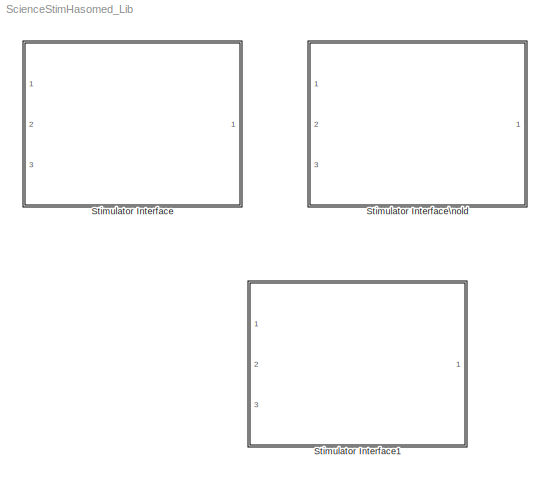
MODEL ScienceStimHasomed_Lib
KIND library
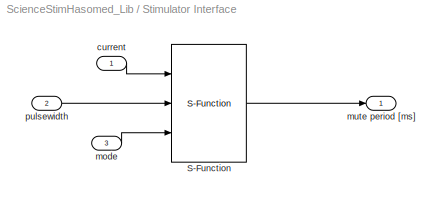
BLOCK [SubSystem] Stimulator Interface
  FunctionWithSeparateData = off
  MaskCallbackString = ||||||||% Get the mask parameter values. This is a cell array of strings.\nmaskStr = get_param(gcb,'MaskValues');\n% The doublet / triplet flag is the 9th mask parameter.\n% Check the value selected \nif strcmp(maskStr{9},'on'),\n    % show associated parameter (Group Time)\n    set_param(gcb,'MaskVisibilities',{'on';'on';'on';'on';'on';'on';'on';'on';'on'})\nelse\n    % hide associated parameter ...<+104ch>
  MaskDescription = Communication to the 8-channel RehaStim Stimulator (HASOMED GmbH) through the serial port.\n\nSample Time:	  The sample time of the block (not neccessarily of the stimulation).\nSerial Port:	  The serial port connected to the stimulator.\nChannels:	  An array of channel numbers to be used (e.g. [1 2 5]).\nMain Time:	  The stimulation period (set this to 0 for external triggering).\nGroup Time:	  T...<+189ch>  <repeated x3 — deduplicated; at blocks: Stimulator Interface, Stimulator Interface1, Stimulator Interface\nold>
  MaskDisplay = image(imread('RehaStim-background.png'), [0.05 0.25 0.9 0.9]);port_label('input', 1, 'current');port_label('input', 2, 'pulsewidth');text(0.25,0.1,['Serial Port: COM' num2str(com_port)],'horizontalAlignment','left','verticalAlignment','bottom');text(0.25,0,['Channels: ' num2str(channelstim)],'horizontalAlignment','left','verticalAlignment','bottom');port_label('input', 3, 'mode');port_label('outpu...<+25ch>
  MaskEnableString = on,on,on,on,on,on,on,on,on
  MaskHelp = eval('open(''SciencStimHasomed_Help.html'')')
  MaskHideContents = off
  MaskIconFrame = on
  MaskIconOpaque = on
  MaskIconRotate = none
  MaskIconUnits = normalized
  MaskInitialization = load_system simulink\n%---------------------------------------------------------------------------\n% Mute Output\n% Get the mask parameter values. This is a cell array of strings.\nmaskStr = get_param(gcb,'MaskValues');\n% The outflag is the 8th mask parameter.\n    block = 'mute period [ms]';\n    system_block = [gcb '/' block];\n    srcblock= 'S-Function';\n    system_srcblock= [gcb '/' srcbloc...<+3056ch>
  MaskPromptString = Sample Time:|Serial Port:|Channels to be Stimulated:|Main Time in ms (only in steps of 0.5 ms):|Group Time in ms (only in steps of 0.5 ms):|Low Frequency Channels:|Low Frequency Factor:|Enable mute period output|Enable doublets and triplets
  MaskSelfModifiable = on
  MaskStyleString = edit,popup(COM1|COM2|COM3|COM4|COM5|COM6|COM7|COM8|COM9|COM10|COM11|COM12|COM13|COM14|COM15|COM16|COM17|COM18|COM19|COM20),edit,edit,edit,edit,edit,checkbox,checkbox
  MaskTabNameString = ,,,,,,,,
  MaskToolTipString = on,on,on,on,on,on,on,on,on
  MaskTunableValueString = on,off,on,on,on,on,on,on,on
  MaskType = Stimulator Interface (RehaStim - Hasomed GmbH)
  MaskValueString = 0.05|COM2|[1 2]|0|5|[]|[]|on|on
  MaskVarAliasString = ,,,,,,,,
  MaskVariables = Ts=@1;com_port=@2;channelstim=@3;tsone=@4;tstwo=@5;channellf=@6;nfactor=@7;outflag=@8;dtflag=@9;
  MaskVisibilityString = on,on,on,on,on,on,on,on,on
  MinAlgLoopOccurrences = off
  Ports = [3, 1]
  RTWSystemCode = Auto
BLOCK [S-Function] Stimulator Interface/S-Function
  FunctionName = sfc_clm
  Parameters = Ts,com_port,channelstim,tsone,tstwo,0,channellf,nfactor
  Ports = [3, 1]
BLOCK [Inport] Stimulator Interface/current
  IconDisplay = Port number
BLOCK [Inport] Stimulator Interface/mode
  IconDisplay = Port number
  Port = 3
BLOCK [Outport] Stimulator Interface/mute period [ms]
  BusOutputAsStruct = off
  IconDisplay = Port number
BLOCK [Inport] Stimulator Interface/pulsewidth
  IconDisplay = Port number
  Port = 2
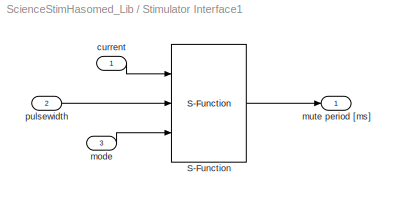
BLOCK [SubSystem] Stimulator Interface1
  FunctionWithSeparateData = off
  MaskCallbackString = ||||||||% Get the mask parameter values. This is a cell array of strings.\nmaskStr = get_param(gcb,'MaskValues');\n% The doublet / triplet flag is the 9th mask parameter.\n% Check the value selected \nif strcmp(maskStr{9},'on'),\n    % show associated parameter (Group Time)\n    set_param(gcb,'MaskVisibilities',{'on';'on';'on';'on';'on';'on';'on';'on';'on'})\nelse\n    % hide associated parameter ...<+293ch>
  MaskDisplay = image(imread('RehaStim-background.png'), [0.05 0.25 0.9 0.9]);port_label('input', 1, 'current');port_label('input', 2, 'pulsewidth');text(0.25,0.1,['Serial Port: COM' num2str(com_port)],'horizontalAlignment','left','verticalAlignment','bottom');text(0.25,0,['Channels: ' num2str(channelstim)],'horizontalAlignment','left','verticalAlignment','bottom');port_label('input', 3, 'mode');port_label('outpu...<+25ch>
  MaskEnableString = on,on,on,on,on,on,on,on,on
  MaskHelp = eval('open(''SciencStimHasomed_Help.html'')')
  MaskHideContents = off
  MaskIconFrame = on
  MaskIconOpaque = on
  MaskIconRotate = none
  MaskIconUnits = normalized
  MaskInitialization = %---------------------------------------------------------------------------\n% Mute Output\n% Get the mask parameter values. This is a cell array of strings.\nmaskStr = get_param(gcb,'MaskValues');\n% The outflag is the 8th mask parameter.\n    block = 'mute period [ms]';\n    system_block = [gcb '/' block];\n    srcblock= 'S-Function';\n    system_srcblock= [gcb '/' srcblock];\n    pos=get_param...<+2919ch>
  MaskPromptString = Sample Time:|Serial Port:|Channels to be Stimulated:|Main Time in ms (only in steps of 0.5 ms):|Group Time in ms (only in steps of 0.5 ms):|Low Frequency Channels:|Low Frequency Factor:|Enable mute period output|Enable doublets and triplets
  MaskSelfModifiable = on
  MaskStyleString = edit,popup(COM1|COM2|COM3|COM4|COM5|COM6|COM7|COM8|COM9|COM10|COM11|COM12|COM13|COM14|COM15|COM16|COM17|COM18|COM19|COM20),edit,edit,edit,edit,edit,checkbox,checkbox
  MaskTabNameString = ,,,,,,,,
  MaskToolTipString = on,on,on,on,on,on,on,on,on
  MaskTunableValueString = on,off,on,on,on,on,on,on,on
  MaskType = Stimulator Interface (RehaStim - Hasomed GmbH)
  MaskValueString = 0.05|COM2|[1 2]|0|5|[]|[]|on|on
  MaskVarAliasString = ,,,,,,,,
  MaskVariables = Ts=@1;com_port=@2;channelstim=@3;tsone=@4;tstwo=@5;channellf=@6;nfactor=@7;outflag=@8;dtflag=@9;
  MaskVisibilityString = on,on,on,on,on,on,on,on,on
  MinAlgLoopOccurrences = off
  Ports = [3, 1]
  RTWSystemCode = Auto
BLOCK [S-Function] Stimulator Interface1/S-Function
  FunctionName = sfc_clm
  Parameters = Ts,com_port,channelstim,tsone,tstwo,0,channellf,nfactor
  Ports = [3, 1]
BLOCK [Inport] Stimulator Interface1/current
  IconDisplay = Port number
BLOCK [Inport] Stimulator Interface1/mode
  IconDisplay = Port number
  Port = 3
BLOCK [Outport] Stimulator Interface1/mute period [ms]
  BusOutputAsStruct = off
  IconDisplay = Port number
BLOCK [Inport] Stimulator Interface1/pulsewidth
  IconDisplay = Port number
  Port = 2
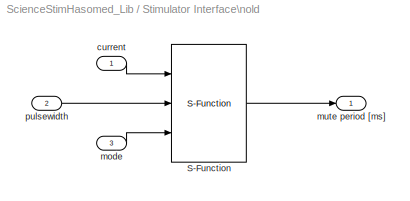
BLOCK [SubSystem] Stimulator Interface\nold
  FunctionWithSeparateData = off
  MaskCallbackString = ||||||
  MaskDisplay = image(imread('RehaStim-background.png'), [0.05 0.25 0.9 0.9]);\nport_label('input', 1, 'current');\nport_label('input', 2, 'pulsewidth');\nport_label('input', 3, 'mode');\nport_label('output', 1, 'mute period [ms]');\ntext(0.25,0.1,['Serial Port: COM' num2str(com_port)],'horizontalAlignment','left','verticalAlignment','bottom')\ntext(0.25,0,['Channels: ' num2str(channelstim)],'horizontalAlignment'...<+39ch>
  MaskEnableString = on,on,on,on,on,on,on
  MaskHelp = eval('open(''SciencStimHasomed_Help.html'')')
  MaskHideContents = off
  MaskIconFrame = on
  MaskIconOpaque = on
  MaskIconRotate = none
  MaskIconUnits = normalized
  MaskPromptString = Sample Time:|Serial Port:|Channels to be Stimulated:|Main Time in ms (only in steps of 0.5 ms):|Group Time in ms (only in steps of 0.5 ms):|Low Frequency Channels:|Low Frequency Factor:
  MaskStyleString = edit,popup(COM1|COM2|COM3|COM4|COM5|COM6|COM7|COM8|COM9|COM10|COM11|COM12|COM13|COM14|COM15|COM16|COM17|COM18|COM19|COM20),edit,edit,edit,edit,edit
  MaskTabNameString = ,,,,,,
  MaskToolTipString = on,on,on,on,on,on,on
  MaskTunableValueString = on,off,on,on,on,on,on
  MaskType = Stimulator Interface (RehaStim - Hasomed GmbH)
  MaskValueString = 0.05|COM2|[1 2]|0|5|[]|[]
  MaskVarAliasString = ,,,,,,
  MaskVariables = Ts=@1;com_port=@2;channelstim=@3;tsone=@4;tstwo=@5;channellf=@6;nfactor=@7;
  MaskVisibilityString = on,on,on,on,on,on,on
  MinAlgLoopOccurrences = off
  Ports = [3, 1]
  RTWSystemCode = Auto
BLOCK [S-Function] Stimulator Interface\nold/S-Function
  FunctionName = sfc_clm
  Parameters = Ts,com_port,channelstim,tsone,tstwo,0,channellf,nfactor
  Ports = [3, 1]
BLOCK [Inport] Stimulator Interface\nold/current
  IconDisplay = Port number
BLOCK [Inport] Stimulator Interface\nold/mode
  IconDisplay = Port number
  Port = 3
BLOCK [Outport] Stimulator Interface\nold/mute period [ms]
  BusOutputAsStruct = off
  IconDisplay = Port number
BLOCK [Inport] Stimulator Interface\nold/pulsewidth
  IconDisplay = Port number
  Port = 2
LINE Stimulator Interface/S-Function:1 -> Stimulator Interface/mute period [ms]:1
LINE Stimulator Interface/current:1 -> Stimulator Interface/S-Function:1
LINE Stimulator Interface/mode:1 -> Stimulator Interface/S-Function:3
LINE Stimulator Interface/pulsewidth:1 -> Stimulator Interface/S-Function:2
LINE Stimulator Interface1/S-Function:1 -> Stimulator Interface1/mute period [ms]:1
LINE Stimulator Interface1/current:1 -> Stimulator Interface1/S-Function:1
LINE Stimulator Interface1/mode:1 -> Stimulator Interface1/S-Function:3
LINE Stimulator Interface1/pulsewidth:1 -> Stimulator Interface1/S-Function:2
LINE Stimulator Interface\nold/S-Function:1 -> Stimulator Interface\nold/mute period [ms]:1
LINE Stimulator Interface\nold/current:1 -> Stimulator Interface\nold/S-Function:1
LINE Stimulator Interface\nold/mode:1 -> Stimulator Interface\nold/S-Function:3
LINE Stimulator Interface\nold/pulsewidth:1 -> Stimulator Interface\nold/S-Function:2
